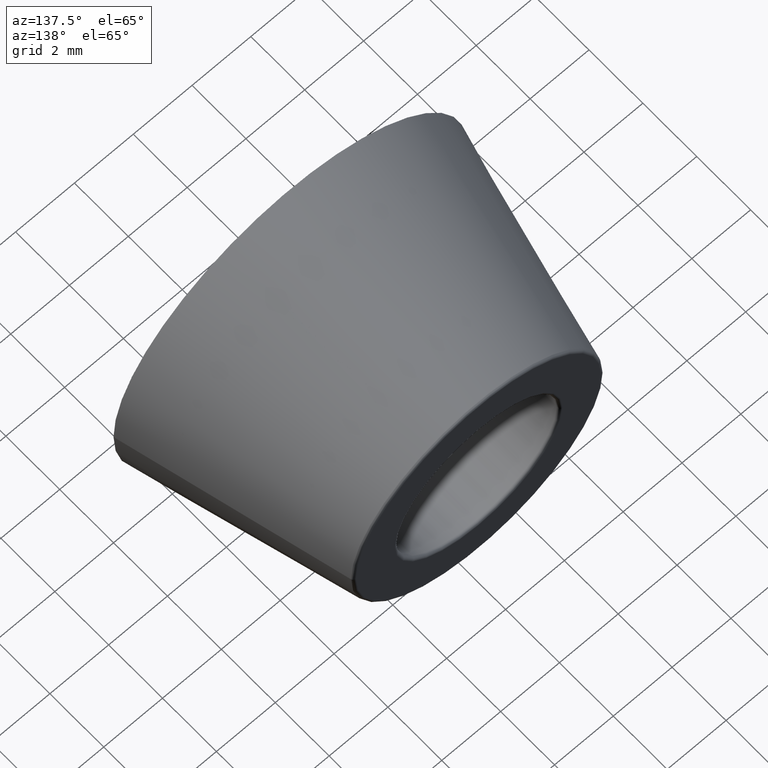
[diagram: clean part render]
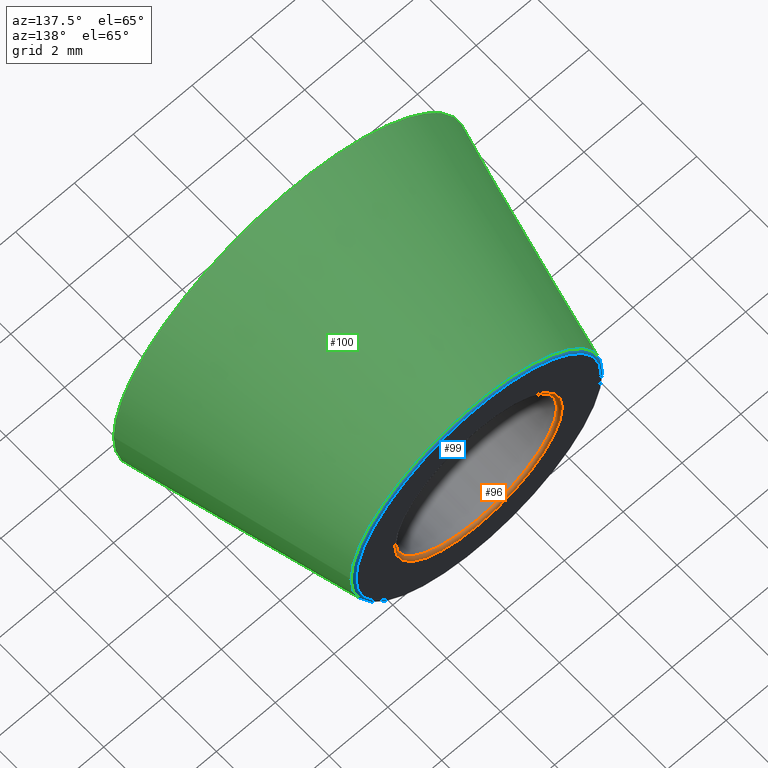
[diagram: same view with three faces highlighted in distinct colors, each labeled with its STEP entity id]
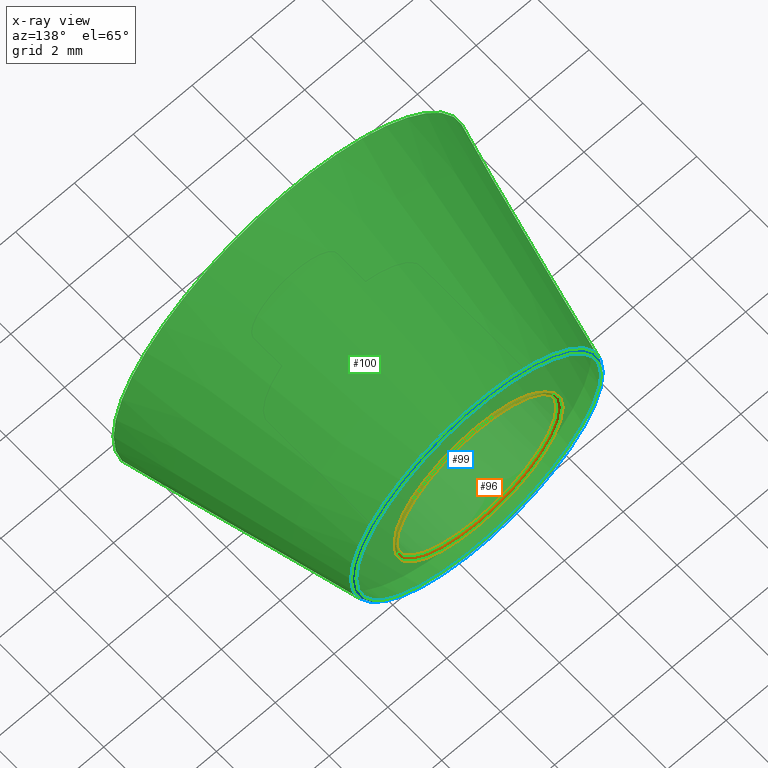
[diagram: x-ray of the same camera — body ghosted, the three highlighted faces saturated]
A machine part, auxiliary view with three faces highlighted in distinct colors.
The next image is the same camera in x-ray (body ghosted, the three faces saturated) — at least one of them is partly hidden behind the body in this view.
Their STEP definitions:

[orange] entity #96 — the highlighted toroidal blend (fillet) surface has major radius 2.85 mm and minor (blend) radius 0.1 mm.
#22=FACE_BOUND('',#39,.T.);
#29=FACE_OUTER_BOUND('',#38,.T.);
#38=EDGE_LOOP('',(#78));
#39=EDGE_LOOP('',(#79));
#54=CIRCLE('',#108,2.75);
#55=CIRCLE('',#109,2.85);
#62=VERTEX_POINT('',#162);
#63=VERTEX_POINT('',#164);
#70=EDGE_CURVE('',#62,#62,#54,.T.);
#71=EDGE_CURVE('',#63,#63,#55,.T.);
#78=ORIENTED_EDGE('',*,*,#70,.T.);
#79=ORIENTED_EDGE('',*,*,#71,.T.);
#94=TOROIDAL_SURFACE('',#107,2.85,0.1);
#96=ADVANCED_FACE('',(#29,#22),#94,.T.);
#107=AXIS2_PLACEMENT_3D('',#161,#126,#127);
#108=AXIS2_PLACEMENT_3D('',#163,#128,#129);
#109=AXIS2_PLACEMENT_3D('',#165,#130,#131);
#126=DIRECTION('center_axis',(0.,-1.,0.));
#127=DIRECTION('ref_axis',(0.,0.,-1.));
#128=DIRECTION('center_axis',(0.,-1.,0.));
#129=DIRECTION('ref_axis',(-1.,0.,0.));
#130=DIRECTION('center_axis',(0.,1.,0.));
#131=DIRECTION('ref_axis',(-1.,0.,0.));
#161=CARTESIAN_POINT('Origin',(0.,6.9,0.));
#162=CARTESIAN_POINT('',(2.75,6.9,3.36777869765522E-16));
#163=CARTESIAN_POINT('Origin',(0.,6.9,0.));
#164=CARTESIAN_POINT('',(2.85,7.,-3.49024337756996E-16));
#165=CARTESIAN_POINT('Origin',(0.,7.,0.));

[blue] entity #99 — the highlighted toroidal blend (fillet) surface has major radius 4.1719 mm and minor (blend) radius 0.1 mm.
#25=FACE_BOUND('',#45,.T.);
#32=FACE_OUTER_BOUND('',#44,.T.);
#44=EDGE_LOOP('',(#84));
#45=EDGE_LOOP('',(#85));
#56=CIRCLE('',#111,4.17192235935956);
#58=CIRCLE('',#115,4.26893660937409);
#64=VERTEX_POINT('',#167);
#66=VERTEX_POINT('',#173);
#72=EDGE_CURVE('',#64,#64,#56,.T.);
#74=EDGE_CURVE('',#66,#66,#58,.T.);
#84=ORIENTED_EDGE('',*,*,#72,.T.);
#85=ORIENTED_EDGE('',*,*,#74,.T.);
#95=TOROIDAL_SURFACE('',#114,4.17192235935956,0.1);
#99=ADVANCED_FACE('',(#32,#25),#95,.T.);
#111=AXIS2_PLACEMENT_3D('',#168,#134,#135);
#114=AXIS2_PLACEMENT_3D('',#172,#140,#141);
#115=AXIS2_PLACEMENT_3D('',#174,#142,#143);
#134=DIRECTION('center_axis',(0.,-1.,0.));
#135=DIRECTION('ref_axis',(-1.,0.,1.22464679914735E-16));
#140=DIRECTION('center_axis',(0.,-1.,0.));
#141=DIRECTION('ref_axis',(0.,0.,-1.));
#142=DIRECTION('center_axis',(0.,1.,0.));
#143=DIRECTION('ref_axis',(-1.,0.,0.));
#167=CARTESIAN_POINT('',(4.17192235935956,7.,0.));
#168=CARTESIAN_POINT('Origin',(0.,7.,0.));
#172=CARTESIAN_POINT('Origin',(0.,6.9,0.));
#173=CARTESIAN_POINT('',(4.26893660937409,6.92425356250363,-1.04558791088659E-15));
#174=CARTESIAN_POINT('Origin',(0.,6.92425356250363,-5.22793955443294E-16));

[green] entity #100 — the highlighted conical surface has half-angle 14.036 deg.
#15=CONICAL_SURFACE('',#116,5.125,14.0362434679265);
#26=FACE_BOUND('',#47,.T.);
#33=FACE_OUTER_BOUND('',#46,.T.);
#46=EDGE_LOOP('',(#86));
#47=EDGE_LOOP('',(#87));
#58=CIRCLE('',#115,4.26893660937409);
#59=CIRCLE('',#117,6.);
#66=VERTEX_POINT('',#173);
#67=VERTEX_POINT('',#176);
#74=EDGE_CURVE('',#66,#66,#58,.T.);
#75=EDGE_CURVE('',#67,#67,#59,.T.);
#86=ORIENTED_EDGE('',*,*,#75,.F.);
#87=ORIENTED_EDGE('',*,*,#74,.F.);
#100=ADVANCED_FACE('',(#33,#26),#15,.T.);
#115=AXIS2_PLACEMENT_3D('',#174,#142,#143);
#116=AXIS2_PLACEMENT_3D('',#175,#144,#145);
#117=AXIS2_PLACEMENT_3D('',#177,#146,#147);
#142=DIRECTION('center_axis',(0.,1.,0.));
#143=DIRECTION('ref_axis',(-1.,0.,0.));
#144=DIRECTION('center_axis',(0.,-1.,0.));
#145=DIRECTION('ref_axis',(1.,0.,0.));
#146=DIRECTION('center_axis',(0.,-1.,0.));
#147=DIRECTION('ref_axis',(1.,0.,0.));
#173=CARTESIAN_POINT('',(4.26893660937409,6.92425356250363,-1.04558791088659E-15));
#174=CARTESIAN_POINT('Origin',(0.,6.92425356250363,-5.22793955443294E-16));
#175=CARTESIAN_POINT('Origin',(0.,3.5,0.));
#176=CARTESIAN_POINT('',(6.,1.10218211923262E-15,0.));
#177=CARTESIAN_POINT('Origin',(0.,1.11022302462516E-15,0.));